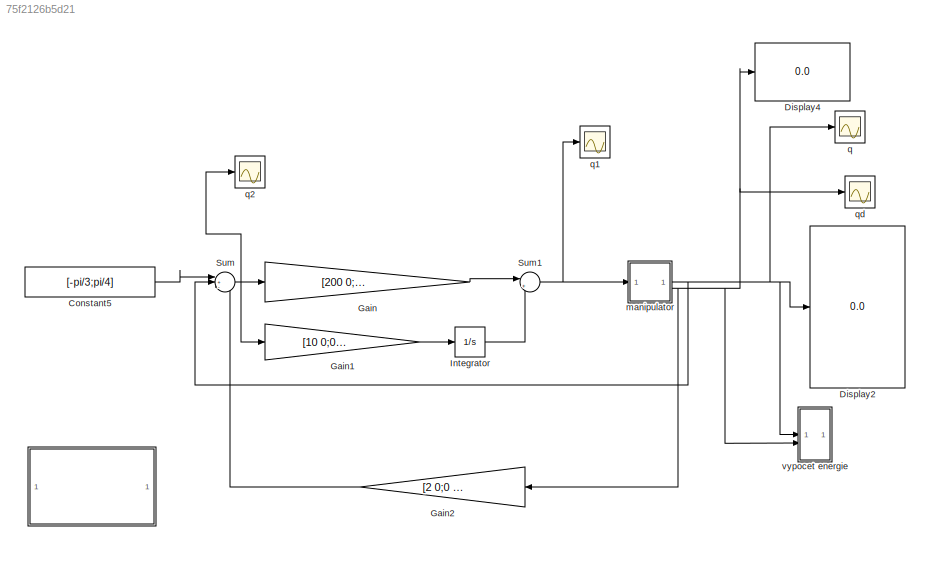
MODEL slx_75f2126b5d21
KIND model
CONFIG AbsTol = auto
CONFIG EnableMultiTasking = on
CONFIG FixedStep = .01
CONFIG MaxStep = auto
CONFIG MinStep = auto
CONFIG RelTol = 1e-3
CONFIG SampleTimeConstraint = Unconstrained
CONFIG SolverName = ode45
CONFIG StartTime = 0
CONFIG StopTime = 10
BLOCK [SubSystem]  
  OpenFcn = parsys
BLOCK [Constant] Constant5
  Value = [-pi/3;pi/4]
BLOCK [Display] Display2
  Decimation = 1
BLOCK [Display] Display4
  Decimation = 1
BLOCK [Gain] Gain
  Gain = [200 0;0 180]
  Multiplication = Matrix(K*u)
BLOCK [Gain] Gain1
  Gain = [10 0;0 5]
  Multiplication = Matrix(K*u)
BLOCK [Gain] Gain2
  Gain = [2 0;0 1]
  Multiplication = Matrix(K*u)
  NameLocation = top
BLOCK [Integrator] Integrator
BLOCK [Sum] Sum
  Inputs = |+--
BLOCK [Sum] Sum1
  Inputs = |++
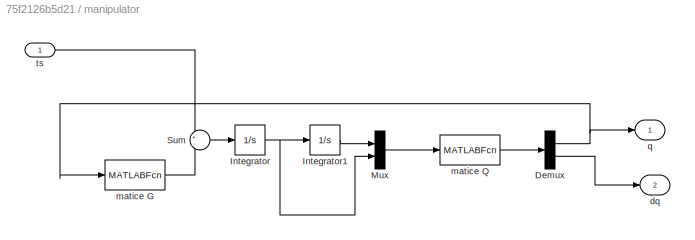
BLOCK [SubSystem] manipulator
BLOCK [Demux] manipulator/Demux
  DisplayOption = none
  Outputs = [2 2]
BLOCK [Integrator] manipulator/Integrator
BLOCK [Integrator] manipulator/Integrator1
  InitialCondition = qic
BLOCK [Mux] manipulator/Mux
  DisplayOption = bar
  Inputs = [2 2]
BLOCK [Sum] manipulator/Sum
  InputSameDT = on
  Inputs = +-
  OutDataTypeStr = Inherit: Same as first input
  SaturateOnIntegerOverflow = on
BLOCK [Outport] manipulator/dq
  NameLocation = top
  Port = 2
  VectorParamsAs1DForOutWhenUnconnected = off
BLOCK [MATLABFcn] manipulator/matice G
  MATLABFcn = matice_G
BLOCK [MATLABFcn] manipulator/matice Q
  MATLABFcn = matice_Q
BLOCK [Outport] manipulator/q
  VectorParamsAs1DForOutWhenUnconnected = off
BLOCK [Inport] manipulator/ts
BLOCK [Scope] q
  Floating = off
  NumInputPorts = 1
  ScopeSpecificationString = Simulink.scopes.TimeScopeBlockCfg('CurrentConfiguration', extmgr.ConfigurationSet(extmgr.Configuration('Core','General UI',true),extmgr.Configuration('Core','Source UI',true),extmgr.Configuration('Sources','WiredSimulink',true,'DataLogging',true,'DataLoggingVariableName','Vystup','DataLoggingSaveFormat','Array','DataLoggingLimitDataPoints',true,'DataLoggingDecimation','1','DataLoggingDecimateData'...<+1833ch>
BLOCK [Scope] q1
  Floating = off
  NumInputPorts = 1
  ScopeSpecificationString = Simulink.scopes.TimeScopeBlockCfg('CurrentConfiguration', extmgr.ConfigurationSet(extmgr.Configuration('Core','General UI',true),extmgr.Configuration('Core','Source UI',true),extmgr.Configuration('Sources','WiredSimulink',true,'DataLogging',true,'DataLoggingVariableName','ScopeData1','DataLoggingSaveFormat','Array','DataLoggingLimitDataPoints',true,'DataLoggingDecimation','1','DataLoggingDecimateD...<+1833ch>
BLOCK [Scope] q2
  Floating = off
  NumInputPorts = 1
  ScopeSpecificationString = Simulink.scopes.TimeScopeBlockCfg('CurrentConfiguration', extmgr.ConfigurationSet(extmgr.Configuration('Core','General UI',true),extmgr.Configuration('Core','Source UI',true),extmgr.Configuration('Sources','WiredSimulink',true,'DataLogging',true,'DataLoggingVariableName','ScopeData2','DataLoggingSaveFormat','Array','DataLoggingLimitDataPoints',true,'DataLoggingDecimation','1','DataLoggingDecimateD...<+1817ch>
BLOCK [Scope] qd
  Floating = off
  NumInputPorts = 1
  ScopeSpecificationString = Simulink.scopes.TimeScopeBlockCfg('CurrentConfiguration', extmgr.ConfigurationSet(extmgr.Configuration('Core','General UI',true),extmgr.Configuration('Core','Source UI',true),extmgr.Configuration('Sources','WiredSimulink',true,'DataLoggingSaveFormat','StructureWithTime','DataLoggingLimitDataPoints',true,'DataLoggingDecimation','1','DataLoggingDecimateData',true),extmgr.Configuration('Visuals','Tim...<+1776ch>
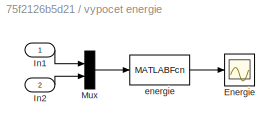
BLOCK [SubSystem] vypocet energie
BLOCK [Scope] vypocet energie/Energie
  Floating = off
  NumInputPorts = 1
  ScopeSpecificationString = Simulink.scopes.TimeScopeBlockCfg('CurrentConfiguration', extmgr.ConfigurationSet(extmgr.Configuration('Core','General UI',true),extmgr.Configuration('Core','Source UI',true),extmgr.Configuration('Sources','WiredSimulink',true,'DataLoggingSaveFormat','StructureWithTime','DataLoggingLimitDataPoints',true,'DataLoggingDecimation','1','DataLoggingDecimateData',true),extmgr.Configuration('Visuals','Tim...<+1852ch>
BLOCK [Inport] vypocet energie/In1
BLOCK [Inport] vypocet energie/In2
  Port = 2
BLOCK [Mux] vypocet energie/Mux
  DisplayOption = bar
  Inputs = [2 2]
BLOCK [MATLABFcn] vypocet energie/energie
  MATLABFcn = energie
  OutputDimensions = 3
LINE Constant5:1 -> Sum:1
LINE Gain1:1 -> Integrator:1
LINE Gain2:1 -> Sum:3
LINE Gain:1 -> Sum1:1
LINE Integrator:1 -> Sum1:2
NET Sum1:1 -> manipulator:1, q1:1
NET Sum:1 -> Gain1:1, Gain:1, q2:1
NET manipulator/Demux:1 -> manipulator/matice G:1, manipulator/q:1
LINE manipulator/Demux:2 -> manipulator/dq:1
LINE manipulator/Integrator1:1 -> manipulator/Mux:1
NET manipulator/Integrator:1 -> manipulator/Integrator1:1, manipulator/Mux:2
LINE manipulator/Mux:1 -> manipulator/matice Q:1
LINE manipulator/Sum:1 -> manipulator/Integrator:1
LINE manipulator/matice G:1 -> manipulator/Sum:2
LINE manipulator/matice Q:1 -> manipulator/Demux:1
LINE manipulator/ts:1 -> manipulator/Sum:1
NET manipulator:1 -> Display2:1, Sum:2, q:1, vypocet energie:1
NET manipulator:2 -> Display4:1, Gain2:1, qd:1, vypocet energie:2
LINE vypocet energie/In1:1 -> vypocet energie/Mux:1
LINE vypocet energie/In2:1 -> vypocet energie/Mux:2
LINE vypocet energie/Mux:1 -> vypocet energie/energie:1
LINE vypocet energie/energie:1 -> vypocet energie/Energie:1
note: NET lines group one-source signal fan-out (src -> all destinations, sorted); 1:1 wires keep LINE
